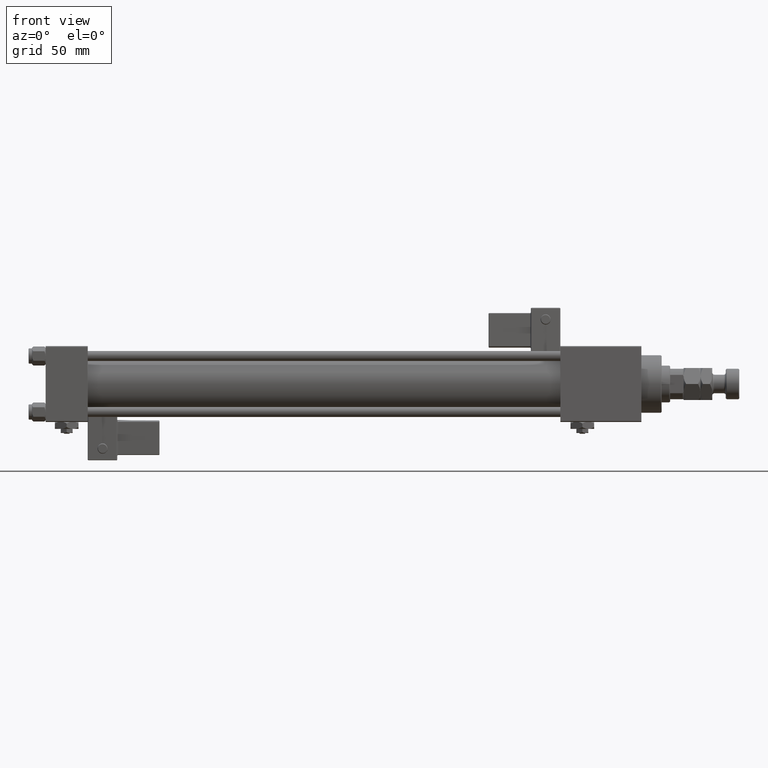
[diagram: clean part render]
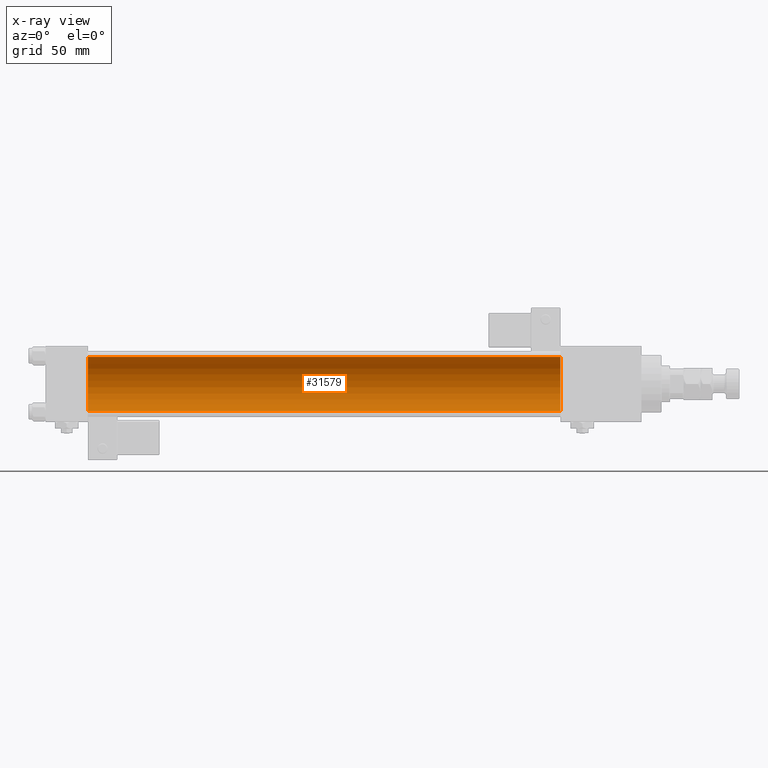
[diagram: x-ray — body ghosted, one internal face saturated and labeled with its STEP entity id]
A machine part, front view, then the same camera in x-ray: the body is ghosted and one INTERNAL B-rep face — a face not visible from any outside direction — is saturated and labeled: STEP entity #31579.
In plain terms, the highlighted cylindrical surface (edge-blend (fillet) strip) has radius 16 mm, axis along (-1, -0, -0).
Its self-contained STEP definition (entity closure, byte-faithful):
#1008 = CARTESIAN_POINT ( 'NONE',  ( 25.00000000000000000, -2.602085213965210642E-15, 0.000000000000000000 ) ) ;
#1840 = DIRECTION ( 'NONE',  ( 0.000000000000000000, 0.000000000000000000, -1.000000000000000000 ) ) ;
#2547 = CARTESIAN_POINT ( 'NONE',  ( 305.0000000000000568, -6.426503353294456087E-16, -16.00000000000000000 ) ) ;
#5226 = LINE ( 'NONE', #22569, #25424 ) ;
#5733 = VERTEX_POINT ( 'NONE', #46166 ) ;
#6462 = ORIENTED_EDGE ( 'NONE', *, *, #13276, .F. ) ;
#8127 = AXIS2_PLACEMENT_3D ( 'NONE', #1008, #22353, #1840 ) ;
#8891 = CARTESIAN_POINT ( 'NONE',  ( 305.0000000000000568, -2.602085213965210642E-15, 16.00000000000000000 ) ) ;
#10598 = DIRECTION ( 'NONE',  ( -1.000000000000000000, -0.000000000000000000, -0.000000000000000000 ) ) ;
#11879 = EDGE_CURVE ( 'NONE', #5733, #19135, #44474, .T. ) ;
#13276 = EDGE_CURVE ( 'NONE', #46298, #5733, #5226, .T. ) ;
#13432 = LINE ( 'NONE', #8891, #28574 ) ;
#15048 = AXIS2_PLACEMENT_3D ( 'NONE', #53583, #23417, #40751 ) ;
#16139 = DIRECTION ( 'NONE',  ( 0.000000000000000000, 0.000000000000000000, -1.000000000000000000 ) ) ;
#18870 = FACE_OUTER_BOUND ( 'NONE', #49633, .T. ) ;
#19135 = VERTEX_POINT ( 'NONE', #51637 ) ;
#19163 = ORIENTED_EDGE ( 'NONE', *, *, #29180, .T. ) ;
#22353 = DIRECTION ( 'NONE',  ( 1.000000000000000000, 0.000000000000000000, 0.000000000000000000 ) ) ;
#22569 = CARTESIAN_POINT ( 'NONE',  ( 305.0000000000000568, -6.426503353294456087E-16, -16.00000000000000000 ) ) ;
#22582 = EDGE_CURVE ( 'NONE', #46298, #55327, #31174, .T. ) ;
#23417 = DIRECTION ( 'NONE',  ( -1.000000000000000000, -0.000000000000000000, -0.000000000000000000 ) ) ;
#25424 = VECTOR ( 'NONE', #10598, 1000.000000000000000 ) ;
#28574 = VECTOR ( 'NONE', #48124, 1000.000000000000000 ) ;
#29180 = EDGE_CURVE ( 'NONE', #55327, #19135, #13432, .T. ) ;
#30328 = DIRECTION ( 'NONE',  ( 1.000000000000000000, 0.000000000000000000, 0.000000000000000000 ) ) ;
#31174 = CIRCLE ( 'NONE', #46644, 16.00000000000000000 ) ;
#31579 = ADVANCED_FACE ( 'NONE', ( #18870 ), #36206, .F. ) ;
#36206 = CYLINDRICAL_SURFACE ( 'NONE', #15048, 16.00000000000000000 ) ;
#40751 = DIRECTION ( 'NONE',  ( 0.000000000000000000, 0.000000000000000000, 1.000000000000000000 ) ) ;
#44474 = CIRCLE ( 'NONE', #8127, 16.00000000000000000 ) ;
#46166 = CARTESIAN_POINT ( 'NONE',  ( 25.00000000000000000, -6.426503353294456087E-16, -16.00000000000000000 ) ) ;
#46298 = VERTEX_POINT ( 'NONE', #2547 ) ;
#46644 = AXIS2_PLACEMENT_3D ( 'NONE', #56235, #30328, #16139 ) ;
#48124 = DIRECTION ( 'NONE',  ( -1.000000000000000000, -0.000000000000000000, -0.000000000000000000 ) ) ;
#49633 = EDGE_LOOP ( 'NONE', ( #6462, #55511, #19163, #50877 ) ) ;
#50877 = ORIENTED_EDGE ( 'NONE', *, *, #11879, .F. ) ;
#51637 = CARTESIAN_POINT ( 'NONE',  ( 25.00000000000000000, -2.602085213965210642E-15, 16.00000000000000000 ) ) ;
#53583 = CARTESIAN_POINT ( 'NONE',  ( 305.0000000000000568, -2.602085213965210642E-15, 0.000000000000000000 ) ) ;
#54509 = CARTESIAN_POINT ( 'NONE',  ( 305.0000000000000568, -2.602085213965210642E-15, 16.00000000000000000 ) ) ;
#55327 = VERTEX_POINT ( 'NONE', #54509 ) ;
#55511 = ORIENTED_EDGE ( 'NONE', *, *, #22582, .T. ) ;
#56235 = CARTESIAN_POINT ( 'NONE',  ( 305.0000000000000568, -2.602085213965210642E-15, 0.000000000000000000 ) ) ;